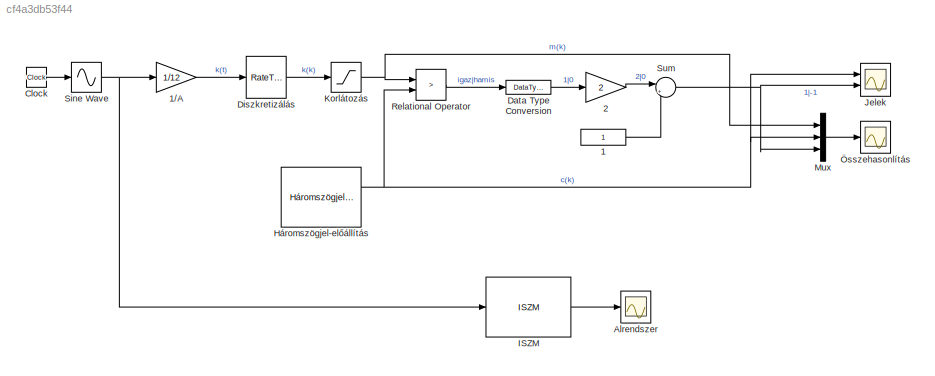
MODEL slx_cf4a3db53f44
KIND model
BLOCK [Constant] 1
BLOCK [Gain] 1//A
  Gain = 1/12
  OutDataTypeStr = Inherit: Inherit via internal rule
  ParamDataTypeStr = Inherit: Inherit via internal rule
  SaturateOnIntegerOverflow = off
BLOCK [Gain] 2
  Gain = 2
  OutDataTypeStr = Inherit: Inherit via internal rule
  ParamDataTypeStr = Inherit: Inherit via internal rule
  SaturateOnIntegerOverflow = off
BLOCK [Scope] Alrendszer
  DataFormat = StructureWithTime
  Floating = off
  LegendLocations = 0.88862     0.75941    0.081693    0.085077
  LimitDataPoints = off
  NumInputPorts = 1
  Ports = [1]
  SampleTime = 0
  SaveName = ScopeData2
  ShowLegends = on
BLOCK [Clock] Clock
BLOCK [DataTypeConversion] Data Type Conversion
  OutDataTypeStr = double
  RndMeth = Floor
  SaturateOnIntegerOverflow = off
BLOCK [RateTransition] Diszkretizálás
  OutPortSampleTime = 50e-6
BLOCK [Reference] Háromszögjel-előállítás  REF=RI_MK/Háromszögjel-előállítás
  A = 1
  Ports = [0, 2]
  SourceBlock = RI_MK/Háromszögjel-előállítás
  SourceType = Háromszögjel-előállítás
  T_S = 1e-6
  f = 10000
BLOCK [Reference] ISZM  REF=RI_MK/ISZM
  Ports = [1, 1]
  SourceBlock = RI_MK/ISZM
  SourceType = Impulzusszélesség-modulátor
  T_S = 1e-6
  U_T = 12
  f_ISZM = 10000
BLOCK [Scope] Jelek
  DataFormat = StructureWithTime
  Floating = off
  LegendLocations = 0.81387     0.92219     0.15903    0.027515\n0.83723     0.45399     0.14555    0.027515
  LimitDataPoints = off
  NumInputPorts = 2
  Ports = [2]
  SampleTime = 0
  ShowLegends = on
  TimeRange = 0.0006000000000000001
  YMax = 15~2
  YMin = -15~-1
BLOCK [Saturate] Korlátozás
  InputPortMap = u0
  LowerLimit = -12+0.5
  Ports = [1, 1]
  UpperLimit = 12-0.5
BLOCK [Mux] Mux
  DisplayOption = bar
  Inputs = 3
  Ports = [3, 1]
BLOCK [RelationalOperator] Relational Operator
  InputSameDT = off
  Operator = >
  OutDataTypeStr = boolean
  Ports = [2, 1]
BLOCK [Sin] Sine Wave
  Amplitude = 12
  Frequency = 2*pi*(1/1000e-6)
  Ports = [1, 1]
  SampleTime = 0
  TimeSource = Use external signal
BLOCK [Sum] Sum
  IconShape = round
  InputSameDT = off
  Inputs = |+-
  OutDataTypeStr = Inherit: Inherit via internal rule
  Ports = [2, 1]
  SaturateOnIntegerOverflow = off
BLOCK [Scope] Összehasonlítás
  DataFormat = StructureWithTime
  Floating = off
  LimitDataPoints = off
  NumInputPorts = 1
  Ports = [1]
  SampleTime = 0
  SaveName = ScopeData1
  ShowLegends = off
  TimeRange = 0.001
  YMax = 1.5
  YMin = -1.5
  ZoomMode = xonly
LINE 1//A:1 -> Diszkretizálás:1
LINE 1:1 -> Sum:2
LINE 2:1 -> Sum:1
LINE Clock:1 -> Sine Wave:1
LINE Data Type Conversion:1 -> 2:1
LINE Diszkretizálás:1 -> Korlátozás:1
NET Háromszögjel-előállítás:1 -> Jelek:1, Mux:2, Relational Operator:2
LINE ISZM:1 -> Alrendszer:1
NET Korlátozás:1 -> Mux:1, Relational Operator:1
LINE Mux:1 -> Összehasonlítás:1
LINE Relational Operator:1 -> Data Type Conversion:1
NET Sine Wave:1 -> 1//A:1, ISZM:1
NET Sum:1 -> Jelek:2, Mux:3
note: NET lines group one-source signal fan-out (src -> all destinations, sorted); 1:1 wires keep LINE
